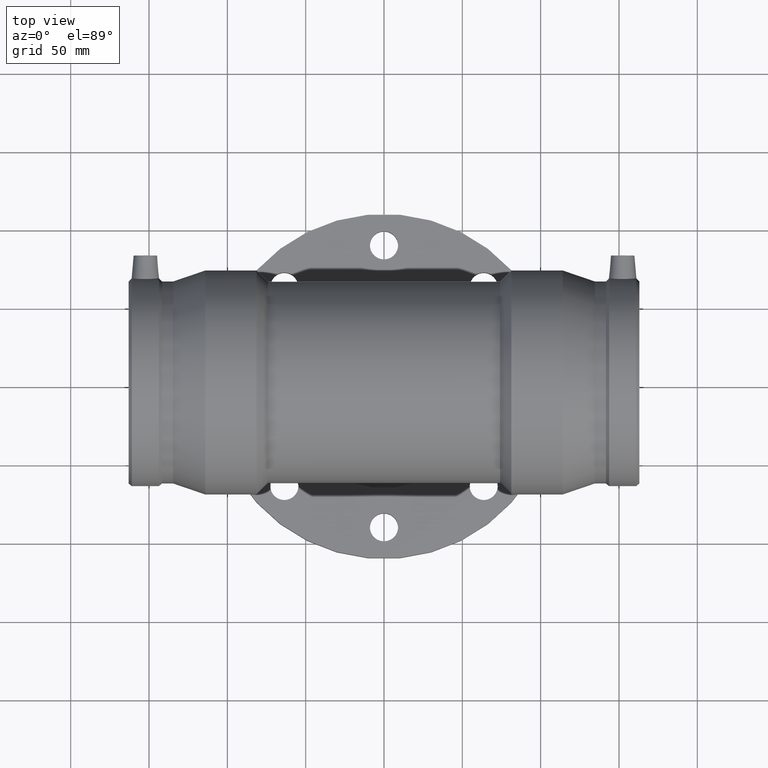
[diagram: clean part render]
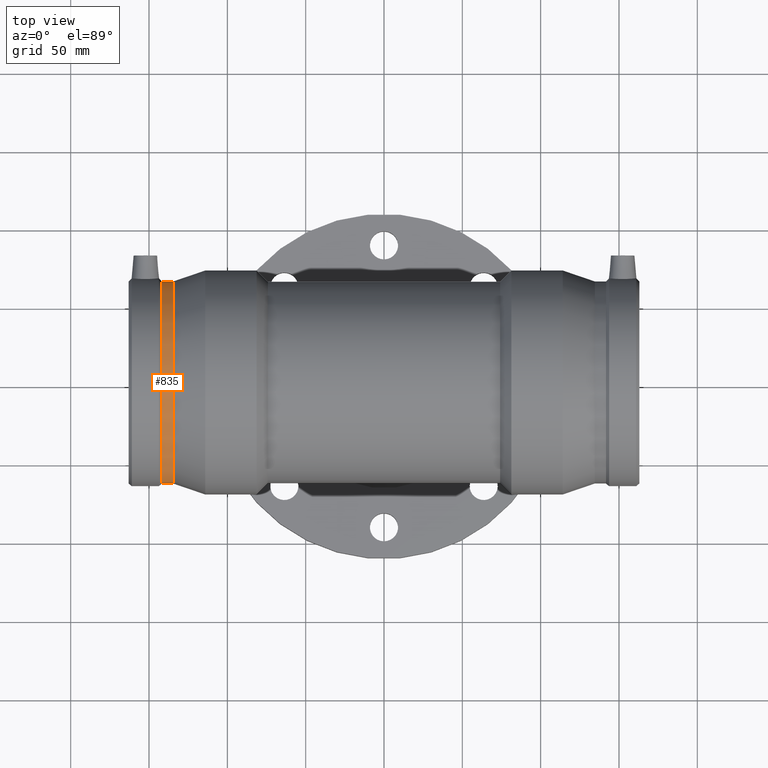
[diagram: same view with one face highlighted and labeled with its STEP entity id]
A machine part, top view. The second image highlights one B-rep face of the part: STEP entity #835.
In plain terms, the highlighted cylindrical surface (bore or boss wall) has radius 64.5002 mm, axis along (1, 0, 0).
Its self-contained STEP definition (entity closure, byte-faithful):
#80=FACE_BOUND('',#367,.T.);
#151=CIRCLE('',#950,64.50015);
#152=CIRCLE('',#952,64.50015);
#196=CYLINDRICAL_SURFACE('',#951,64.50015);
#250=FACE_OUTER_BOUND('',#366,.T.);
#366=EDGE_LOOP('',(#725));
#367=EDGE_LOOP('',(#726));
#491=VERTEX_POINT('',#1934);
#492=VERTEX_POINT('',#1937);
#579=EDGE_CURVE('',#491,#491,#151,.T.);
#580=EDGE_CURVE('',#492,#492,#152,.T.);
#725=ORIENTED_EDGE('',*,*,#579,.T.);
#726=ORIENTED_EDGE('',*,*,#580,.F.);
#835=ADVANCED_FACE('',(#250,#80),#196,.T.);
#950=AXIS2_PLACEMENT_3D('',#1935,#1179,#1180);
#951=AXIS2_PLACEMENT_3D('',#1936,#1181,#1182);
#952=AXIS2_PLACEMENT_3D('',#1938,#1183,#1184);
#1179=DIRECTION('center_axis',(1.,0.,0.));
#1180=DIRECTION('ref_axis',(0.,0.,-1.));
#1181=DIRECTION('center_axis',(1.,0.,0.));
#1182=DIRECTION('ref_axis',(0.,1.,0.));
#1183=DIRECTION('center_axis',(1.,0.,0.));
#1184=DIRECTION('ref_axis',(0.,0.,-1.));
#1934=CARTESIAN_POINT('',(-141.7,64.50015,0.));
#1935=CARTESIAN_POINT('Origin',(-141.7,0.,0.));
#1936=CARTESIAN_POINT('Origin',(-138.15,0.,0.));
#1937=CARTESIAN_POINT('',(-134.6,64.50015,0.));
#1938=CARTESIAN_POINT('Origin',(-134.6,0.,0.));